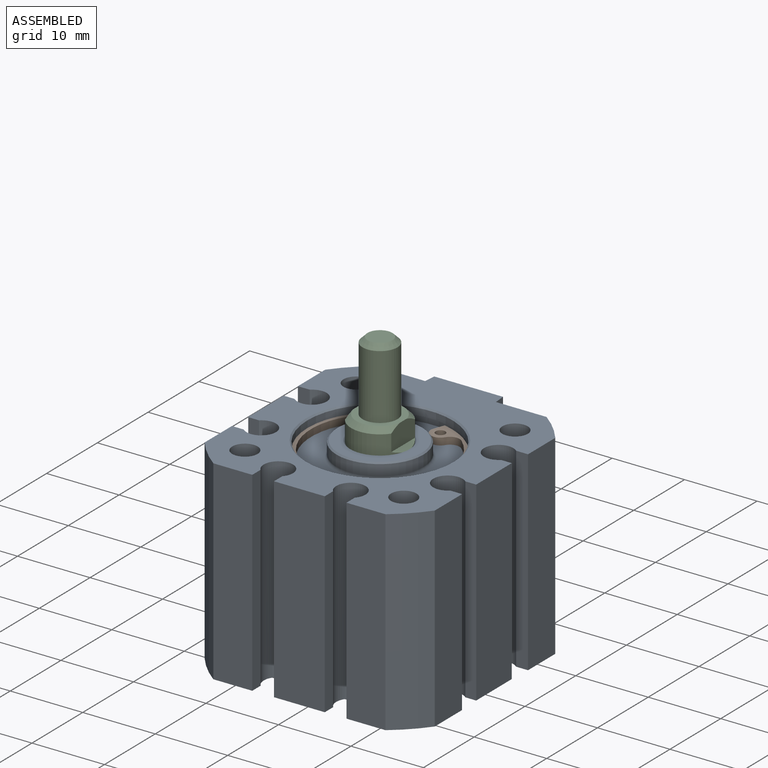
[diagram: assembled view]
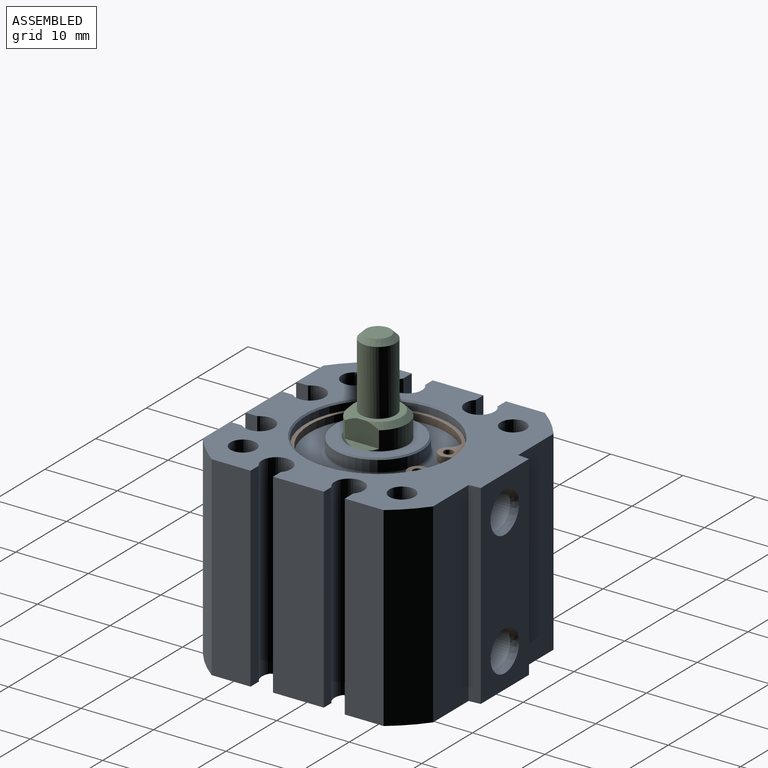
[diagram: assembled view, second angle]
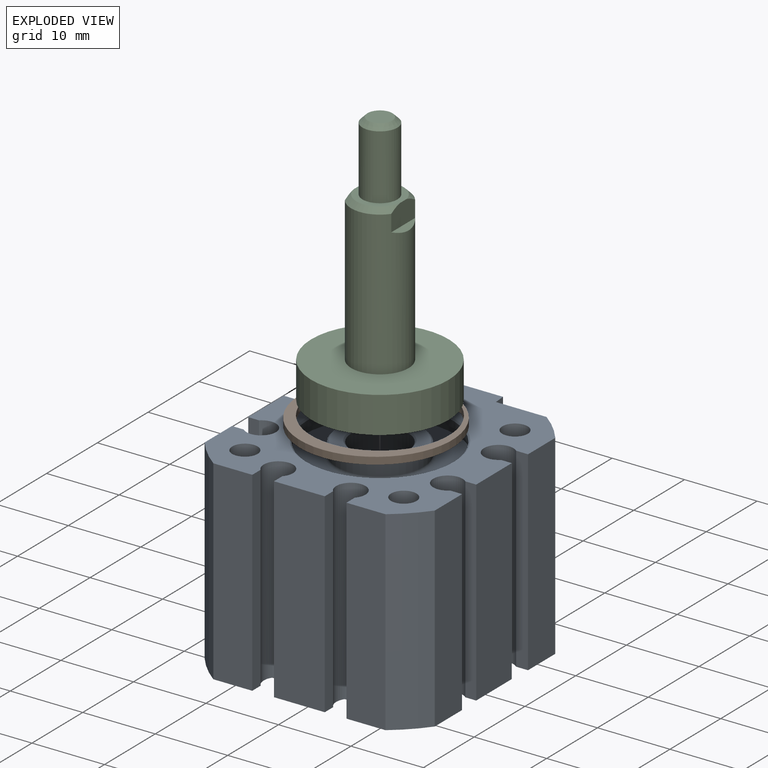
[diagram: exploded view]
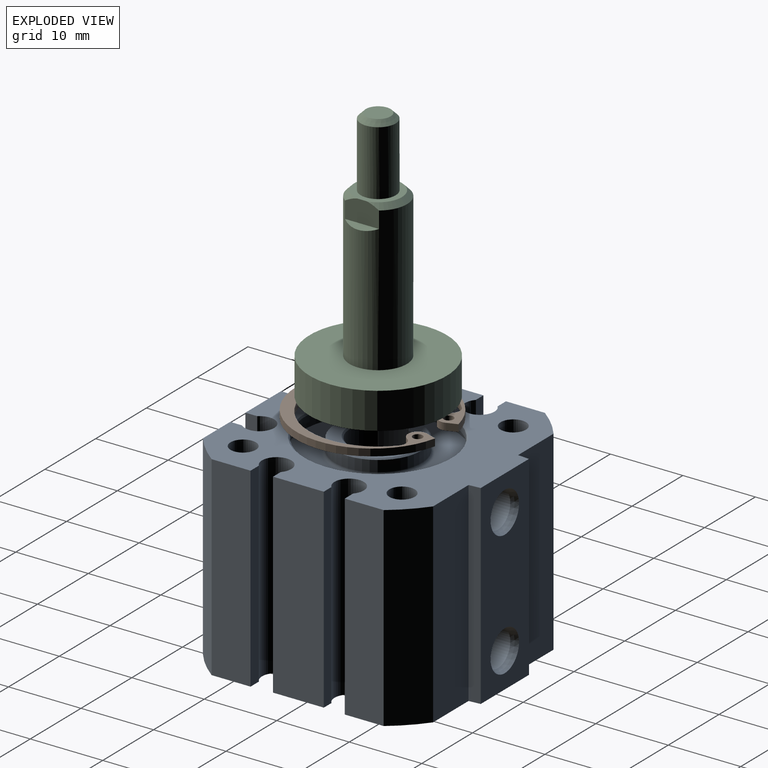
[diagram: exploded view, second angle]
ASSEMBLY  parts=3 mates=2
PART A: 85 faces, bbox 31.8x33.3x26.9 mm
  f0: cone r=10mm half-angle=45deg, axis (0,0,1), area 17.9mm2, adj f34,f42
  f1: cone r=5.8mm half-angle=45deg, axis (0,0,-1), area 10.5mm2, adj f32,f35
  f2: cone r=4.14mm half-angle=45deg, axis (0,0,1), area 7.2mm2, adj f6,f35
  f3: cone r=9.03mm half-angle=30deg, axis (0,0,1), area 28.7mm2, adj f4,f84
  f4: cone r=9.53mm half-angle=30deg, axis (0,0,-1), area 29.5mm2, adj f3,f36
  f5: cylinder r=9.53mm len=19.05mm, axis (0,0,-1), area 1059.3mm2, adj f82,f83
  f6: cylinder r=3.94mm len=7.87mm, axis (0,0,-1), area 109.1mm2, adj f2,f82
  f7: cylinder r=1.75mm len=8.73mm, axis (0,0,-1), area 96.1mm2, adj f36,f81
  f8: cylinder r=1.75mm len=8.73mm, axis (0,0,-1), area 96.1mm2, adj f36,f80
  f9: cylinder r=1.75mm len=8.73mm, axis (0,0,-1), area 96.1mm2, adj f36,f79
  f10: cylinder r=1.75mm len=8.73mm, axis (0,0,-1), area 96.1mm2, adj f36,f78
  f11: cylinder r=1.75mm len=8.73mm, axis (0,0,1), area 96.1mm2, adj f42,f77
  f12: cylinder r=1.75mm len=8.73mm, axis (0,0,1), area 96.1mm2, adj f42,f76
  f13: cylinder r=1.75mm len=8.73mm, axis (0,0,1), area 96.1mm2, adj f42,f75
  f14: cylinder r=1.75mm len=8.73mm, axis (0,0,1), area 96.1mm2, adj f42,f74
  f15: cylinder r=1.38mm len=9.46mm, axis (0,0,1), area 82.1mm2, adj f75,f79
  f16: cylinder r=1.38mm len=9.46mm, axis (0,0,1), area 82.1mm2, adj f74,f78
  f17: cylinder r=1.38mm len=9.46mm, axis (0,0,1), area 82.1mm2, adj f76,f80
  f18: cylinder r=1.38mm len=9.46mm, axis (0,0,1), area 82.1mm2, adj f77,f81
  f19: cylinder r=2.02mm len=26.92mm, axis (0,0,1), area 251.6mm2, adj f36,f42,f64,f65
  f20: cylinder r=2.02mm len=26.92mm, axis (0,0,1), area 251.6mm2, adj f36,f42,f62,f63
  f21: cylinder r=2.02mm len=26.92mm, axis (0,0,1), area 251.6mm2, adj f36,f42,f60,f61
  f22: cylinder r=2.02mm len=26.92mm, axis (0,0,1), area 251.6mm2, adj f36,f42,f58,f59
  f23: cone r=2.02mm half-angle=59deg, axis (0,1,0), area 14.9mm2, adj f24
  f24: cylinder r=2.02mm len=4.04mm, axis (0,1,0), area 30.2mm2, adj f23,f57
  f25: cylinder r=2.41mm len=4.83mm, axis (0,1,0), area 46.5mm2, adj f26,f57
  f26: cone r=2.8mm half-angle=22.5deg, axis (0,1,0), area 16.6mm2, adj f25,f55
  f27: cone r=2.02mm half-angle=59deg, axis (0,1,0), area 14.9mm2, adj f28
  f28: cylinder r=2.02mm len=4.04mm, axis (0,1,0), area 30.2mm2, adj f27,f56
  f29: cylinder r=2.41mm len=4.83mm, axis (0,1,0), area 46.5mm2, adj f30,f56
  f30: cone r=2.8mm half-angle=22.5deg, axis (0,1,0), area 16.6mm2, adj f29,f55
  f31: torus R=6.4mm, axis (0,0,1), area 24.3mm2, adj f32,f48
  f32: cylinder r=6mm len=12mm, axis (0,0,1), area 57.5mm2, adj f1,f31
  f33: cylinder r=10.5mm len=21mm, axis (0,0,1), area 64.3mm2, adj f47,f48
  f34: cylinder r=10mm len=20mm, axis (0,0,1), area 59.7mm2, adj f0,f47
  f35: plane 11.6x11.6mm, normal (0,0,1), area 51.9mm2, adj f1,f2
  f36: plane 33.34x31.75mm, normal (0,0,-1), area 570.1mm2, adj f4,f7,f8,f9,f10,f19,f20,f21
  f37: plane 26.92x5.37mm, normal (1,0,0), area 144.5mm2, adj f36,f42,f52,f70
  f38: plane 26.92x5.37mm, normal (0,-1,0), area 144.5mm2, adj f36,f42,f49,f64
  f39: plane 26.92x7mm, normal (0,-1,0), area 188.5mm2, adj f36,f42,f62,f65
  f40: plane 26.92x5.37mm, normal (-1,0,0), area 144.5mm2, adj f36,f42,f50,f60
  f41: plane 26.92x6.98mm, normal (0,1,0), area 187.9mm2, adj f36,f42,f51,f54
  f42: plane 33.34x31.75mm, normal (0,0,1), area 528.3mm2, adj f0,f11,f12,f13,f14,f19,f20,f21
  f43: plane 26.92x5.37mm, normal (-1,0,0), area 144.5mm2, adj f36,f42,f51,f59
  f44: plane 26.92x5.37mm, normal (0,-1,0), area 144.5mm2, adj f36,f42,f50,f63
  f45: plane 26.92x5.37mm, normal (1,0,0), area 144.5mm2, adj f36,f42,f49,f68
  f46: plane 26.92x6.98mm, normal (0,1,0), area 187.9mm2, adj f36,f42,f52,f53
  f47: plane 21x21mm, normal (0,0,-1), area 32.2mm2, adj f33,f34
  f48: plane 21x21mm, normal (0,0,1), area 217.7mm2, adj f31,f33
  f49: cylinder r=19.82mm len=26.92mm, axis (0,0,1), area 153.1mm2, adj f36,f38,f42,f45
  f50: cylinder r=19.82mm len=26.92mm, axis (0,0,1), area 153.1mm2, adj f36,f40,f42,f44
  f51: cylinder r=19.82mm len=26.92mm, axis (0,0,1), area 153.1mm2, adj f36,f41,f42,f43
  f52: cylinder r=19.82mm len=26.92mm, axis (0,0,1), area 153.1mm2, adj f36,f37,f42,f46
  f53: plane 26.92x1.59mm, normal (1,0.09,0), area 43mm2, adj f36,f42,f46,f55
  f54: plane 26.92x1.59mm, normal (-1,0.09,0), area 43mm2, adj f36,f41,f42,f55
  f55: plane 26.92x9.5mm, normal (0,1,0), area 206.5mm2, adj f26,f30,f36,f42,f53,f54
  f56: plane 4.83x4.83mm, normal (0,1,0), area 5.5mm2, adj f28,f29
  f57: plane 4.83x4.83mm, normal (0,1,0), area 5.5mm2, adj f24,f25
  f58: plane 26.92x1.49mm, normal (0,1,0), area 40.1mm2, adj f22,f36,f42,f73
  f59: plane 26.92x1.64mm, normal (0,-1,0), area 44.1mm2, adj f22,f36,f42,f43
  f60: plane 26.92x1.64mm, normal (0,1,0), area 44.1mm2, adj f21,f36,f40,f42
  f61: plane 26.92x1.49mm, normal (0,-1,0), area 40.1mm2, adj f21,f36,f42,f73
  f62: plane 26.92x1.64mm, normal (-1,0,0), area 44.1mm2, adj f20,f36,f39,f42
  f63: plane 26.92x1.64mm, normal (1,0,0), area 44.1mm2, adj f20,f36,f42,f44
  f64: plane 26.92x1.64mm, normal (-1,0,0), area 44.1mm2, adj f19,f36,f38,f42
  f65: plane 26.92x1.64mm, normal (1,0,0), area 44.1mm2, adj f19,f36,f39,f42
  f66: cylinder r=2.02mm len=26.92mm, axis (0,0,1), area 251.6mm2, adj f36,f42,f67,f68
  f67: plane 26.92x1.49mm, normal (0,-1,0), area 40.1mm2, adj f36,f42,f66,f72
  f68: plane 26.92x1.64mm, normal (0,1,0), area 44.1mm2, adj f36,f42,f45,f66
  f69: cylinder r=2.02mm len=26.92mm, axis (0,0,1), area 251.6mm2, adj f36,f42,f70,f71
  f70: plane 26.92x1.64mm, normal (0,-1,0), area 44.1mm2, adj f36,f37,f42,f69
  f71: plane 26.92x1.49mm, normal (0,1,0), area 40.1mm2, adj f36,f42,f69,f72
  f72: plane 26.92x7mm, normal (1,0,0), area 188.5mm2, adj f36,f42,f67,f71
  f73: plane 26.92x7mm, normal (-1,0,0), area 188.5mm2, adj f36,f42,f58,f61
  f74: plane 3.51x3.51mm, normal (0,0,1), area 3.7mm2, adj f14,f16
  f75: plane 3.51x3.51mm, normal (0,0,1), area 3.7mm2, adj f13,f15
  f76: plane 3.51x3.51mm, normal (0,0,1), area 3.7mm2, adj f12,f17
  f77: plane 3.51x3.51mm, normal (0,0,1), area 3.7mm2, adj f11,f18
  f78: plane 3.51x3.51mm, normal (0,0,-1), area 3.7mm2, adj f10,f16
  f79: plane 3.51x3.51mm, normal (0,0,-1), area 3.7mm2, adj f9,f15
  f80: plane 3.51x3.51mm, normal (0,0,-1), area 3.7mm2, adj f8,f17
  f81: plane 3.51x3.51mm, normal (0,0,-1), area 3.7mm2, adj f7,f18
  f82: plane 19.05x19.05mm, normal (0,0,-1), area 236.3mm2, adj f5,f6
  f83: plane 19.05x19.05mm, normal (0,0,1), area 285mm2, adj f5
  f84: plane 18.05x18.05mm, normal (0,0,-1), area 255.9mm2, adj f3
PART B: 12 faces, bbox 21x20.7x1 mm
  f0: cylinder r=0.67mm len=1.33mm, axis (0,0,-1), area 4.1mm2, adj f5,f11
  f1: cylinder r=0.67mm len=1.33mm, axis (0,0,-1), area 4.1mm2, adj f5,f11
  f2: cylinder r=1.33mm len=2.47mm, axis (0,0,-1), area 3.8mm2, adj f5,f9,f10,f11
  f3: cylinder r=9.5mm len=19mm, axis (0,0,-1), area 45mm2, adj f5,f8,f9,f11
  f4: cylinder r=10.5mm len=21mm, axis (0,0,-1), area 59.8mm2, adj f5,f6,f10,f11
  f5: plane 21x20.74mm, normal (0,0,1), area 72.9mm2, adj f0,f1,f2,f3,f4,f6,f7,f8
  f6: plane 1.42x0.98mm, normal (0.94,-0.34,0), area 1.5mm2, adj f4,f5,f7,f11
  f7: cylinder r=1.33mm len=2.47mm, axis (0,0,-1), area 3.8mm2, adj f5,f6,f8,f11
  f8: cylinder r=1.33mm len=2.01mm, axis (0,0,-1), area 2.3mm2, adj f3,f5,f7,f11
  f9: cylinder r=1.33mm len=2.01mm, axis (0,0,-1), area 2.3mm2, adj f2,f3,f5,f11
  f10: plane 1.42x0.98mm, normal (-0.94,-0.34,0), area 1.5mm2, adj f2,f4,f5,f11
  f11: plane 21x20.74mm, normal (0,0,-1), area 72.9mm2, adj f0,f1,f2,f3,f4,f6,f7,f8
PART C: 14 faces, bbox 19.2x19.2x35.5 mm
  f0: cone r=1.71mm half-angle=45deg, axis (0,0,-1), area 12.8mm2, adj f1,f13
  f1: cylinder r=2.41mm len=8.95mm, axis (0,0,-1), area 135.7mm2, adj f0,f4
  f2: cylinder r=3.97mm len=19.91mm, axis (0,0,-1), area 471.3mm2, adj f5,f6,f8,f9,f10,f11,f12
  f3: cylinder r=9.48mm len=18.95mm, axis (0,0,-1), area 297.7mm2, adj f6,f7
  f4: plane 6.54x6.4mm, normal (0,0,1), area 15.2mm2, adj f1,f5,f8,f10,f12
  f5: cone r=3.27mm half-angle=45deg, axis (0,0,-1), area 8.2mm2, adj f2,f4,f10,f12
  f6: plane 18.95x18.95mm, normal (0,0,1), area 232.5mm2, adj f2,f3
  f7: plane 18.95x18.95mm, normal (0,0,-1), area 282mm2, adj f3
  f8: cone r=3.27mm half-angle=45deg, axis (0,0,-1), area 8.2mm2, adj f2,f4,f10,f12
  f9: plane 4.91x0.99mm, normal (-0.5,0,0.87), area 2.8mm2, adj f2,f10
  f10: plane 4.98x3.28mm, normal (-1,0,0), area 13.1mm2, adj f2,f4,f5,f8,f9
  f11: plane 4.91x0.99mm, normal (0.5,0,0.87), area 2.8mm2, adj f2,f12
  f12: plane 4.98x3.28mm, normal (1,0,0), area 13.1mm2, adj f2,f4,f5,f8,f11
  f13: plane 3.43x3.43mm, normal (0,0,1), area 9.2mm2, adj f0
PLACE A t=(0,0,12.7)mm
PLACE B rot(axis=(-1,0,0),180deg) t=(0,-0.79,25.99)mm
PLACE C rot(axis=(0,0,1),180deg) t=(0,0,3.81)mm
MATE fastened B.f3 <-> A.f0  axis (0,0,-1) through (0,0,24.04)mm
MATE slider A.f0 <-> C.f2  axis (0,0,-1) through (0,0,-0.76)mm
